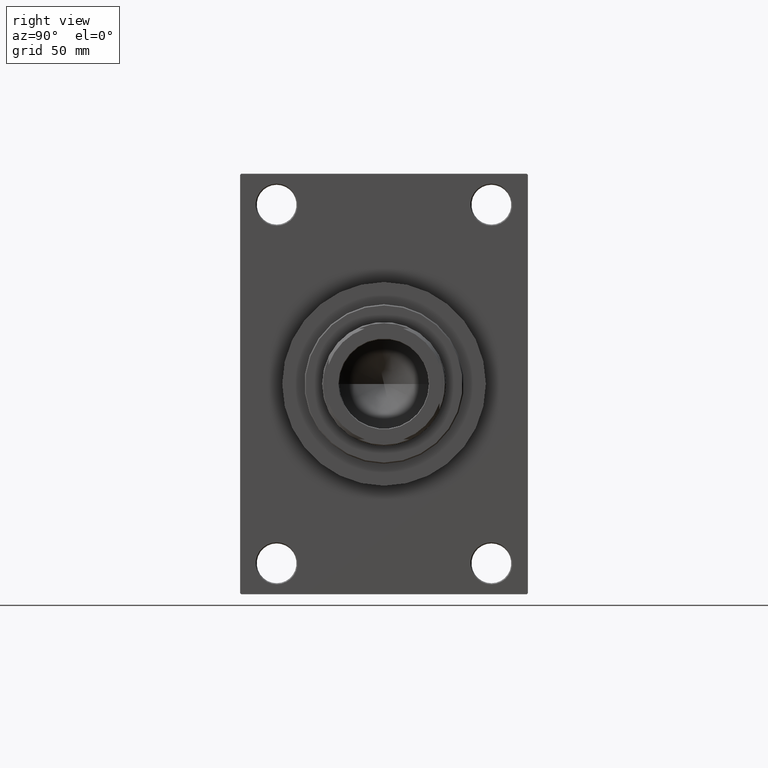
[diagram: clean part render]
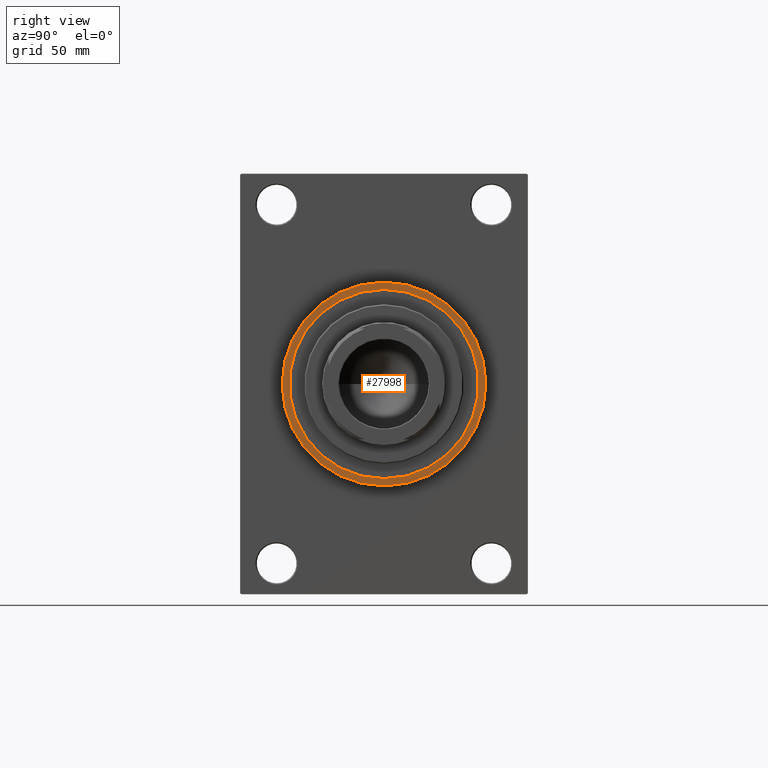
[diagram: same view with one face highlighted and labeled with its STEP entity id]
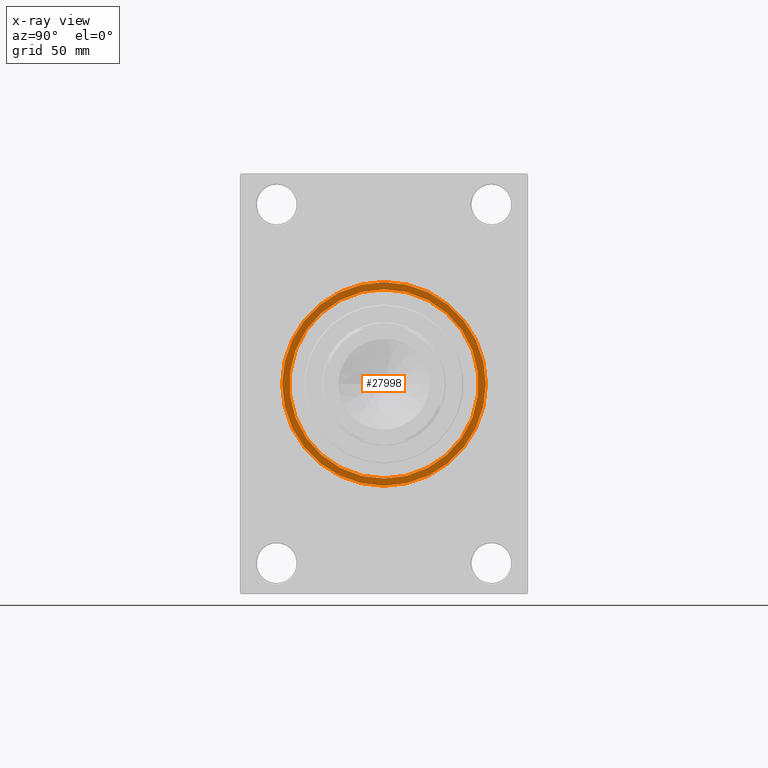
[diagram: x-ray of the same camera — body ghosted, the highlighted face saturated]
A machine part, right view. The second image highlights one B-rep face of the part: STEP entity #27998.
The next image is the same camera in x-ray: the body ghosted, the highlighted face saturated — about 0% of this face is hidden behind the body in this view.
In plain terms, the highlighted planar face has unit normal (1, 0, 0).
Its self-contained STEP definition (entity closure, byte-faithful):
#20 = DIRECTION ( 'NONE',  ( 0.000000000000000000, 0.000000000000000000, -1.000000000000000000 ) ) ;
#726 = FACE_OUTER_BOUND ( 'NONE', #28092, .T. ) ;
#3133 = CARTESIAN_POINT ( 'NONE',  ( 182.0000000000000000, 0.000000000000000000, 0.000000000000000000 ) ) ;
#3500 = DIRECTION ( 'NONE',  ( 0.000000000000000000, 0.000000000000000000, -1.000000000000000000 ) ) ;
#3885 = CARTESIAN_POINT ( 'NONE',  ( 182.0000000000000000, 0.000000000000000000, 0.000000000000000000 ) ) ;
#3943 = CARTESIAN_POINT ( 'NONE',  ( 182.0000000000000000, 5.235365066354935472E-15, 42.75000000000000000 ) ) ;
#4008 = AXIS2_PLACEMENT_3D ( 'NONE', #3133, #32058, #28448 ) ;
#4354 = AXIS2_PLACEMENT_3D ( 'NONE', #17246, #47675, #3500 ) ;
#5117 = EDGE_CURVE ( 'NONE', #43324, #7903, #5652, .T. ) ;
#5652 = CIRCLE ( 'NONE', #4008, 42.75000000000000000 ) ;
#7023 = DIRECTION ( 'NONE',  ( 1.000000000000000000, 0.000000000000000000, 0.000000000000000000 ) ) ;
#7903 = VERTEX_POINT ( 'NONE', #25333 ) ;
#8872 = DIRECTION ( 'NONE',  ( 0.000000000000000000, 0.000000000000000000, -1.000000000000000000 ) ) ;
#9262 = ORIENTED_EDGE ( 'NONE', *, *, #9793, .T. ) ;
#9793 = EDGE_CURVE ( 'NONE', #20295, #26176, #14927, .T. ) ;
#12686 = CARTESIAN_POINT ( 'NONE',  ( 182.0000000000000000, 0.000000000000000000, 46.00000000000000000 ) ) ;
#13491 = ORIENTED_EDGE ( 'NONE', *, *, #47426, .T. ) ;
#14927 = CIRCLE ( 'NONE', #38032, 46.00000000000000000 ) ;
#14975 = FACE_BOUND ( 'NONE', #21918, .T. ) ;
#17246 = CARTESIAN_POINT ( 'NONE',  ( 182.0000000000000000, 0.000000000000000000, 0.000000000000000000 ) ) ;
#20295 = VERTEX_POINT ( 'NONE', #12686 ) ;
#21283 = EDGE_CURVE ( 'NONE', #7903, #43324, #35160, .T. ) ;
#21918 = EDGE_LOOP ( 'NONE', ( #46073, #35608 ) ) ;
#23830 = CARTESIAN_POINT ( 'NONE',  ( 182.0000000000000000, 0.000000000000000000, 0.000000000000000000 ) ) ;
#25333 = CARTESIAN_POINT ( 'NONE',  ( 182.0000000000000000, 0.000000000000000000, -42.75000000000000000 ) ) ;
#26176 = VERTEX_POINT ( 'NONE', #28246 ) ;
#26952 = CIRCLE ( 'NONE', #35429, 46.00000000000000000 ) ;
#27998 = ADVANCED_FACE ( 'NONE', ( #14975, #726 ), #44670, .T. ) ;
#28092 = EDGE_LOOP ( 'NONE', ( #9262, #13491 ) ) ;
#28246 = CARTESIAN_POINT ( 'NONE',  ( 182.0000000000000000, 5.633375276077824704E-15, -46.00000000000000000 ) ) ;
#28448 = DIRECTION ( 'NONE',  ( 0.000000000000000000, 0.000000000000000000, -1.000000000000000000 ) ) ;
#30770 = AXIS2_PLACEMENT_3D ( 'NONE', #3885, #7023, #20 ) ;
#32058 = DIRECTION ( 'NONE',  ( 1.000000000000000000, 0.000000000000000000, 0.000000000000000000 ) ) ;
#34733 = DIRECTION ( 'NONE',  ( 0.000000000000000000, 0.000000000000000000, -1.000000000000000000 ) ) ;
#35160 = CIRCLE ( 'NONE', #4354, 42.75000000000000000 ) ;
#35429 = AXIS2_PLACEMENT_3D ( 'NONE', #23830, #41935, #8872 ) ;
#35608 = ORIENTED_EDGE ( 'NONE', *, *, #5117, .F. ) ;
#38032 = AXIS2_PLACEMENT_3D ( 'NONE', #42463, #46544, #34733 ) ;
#41935 = DIRECTION ( 'NONE',  ( 1.000000000000000000, 0.000000000000000000, 0.000000000000000000 ) ) ;
#42463 = CARTESIAN_POINT ( 'NONE',  ( 182.0000000000000000, 0.000000000000000000, 0.000000000000000000 ) ) ;
#43324 = VERTEX_POINT ( 'NONE', #3943 ) ;
#44670 = PLANE ( 'NONE',  #30770 ) ;
#46073 = ORIENTED_EDGE ( 'NONE', *, *, #21283, .F. ) ;
#46544 = DIRECTION ( 'NONE',  ( 1.000000000000000000, 0.000000000000000000, 0.000000000000000000 ) ) ;
#47426 = EDGE_CURVE ( 'NONE', #26176, #20295, #26952, .T. ) ;
#47675 = DIRECTION ( 'NONE',  ( 1.000000000000000000, 0.000000000000000000, 0.000000000000000000 ) ) ;